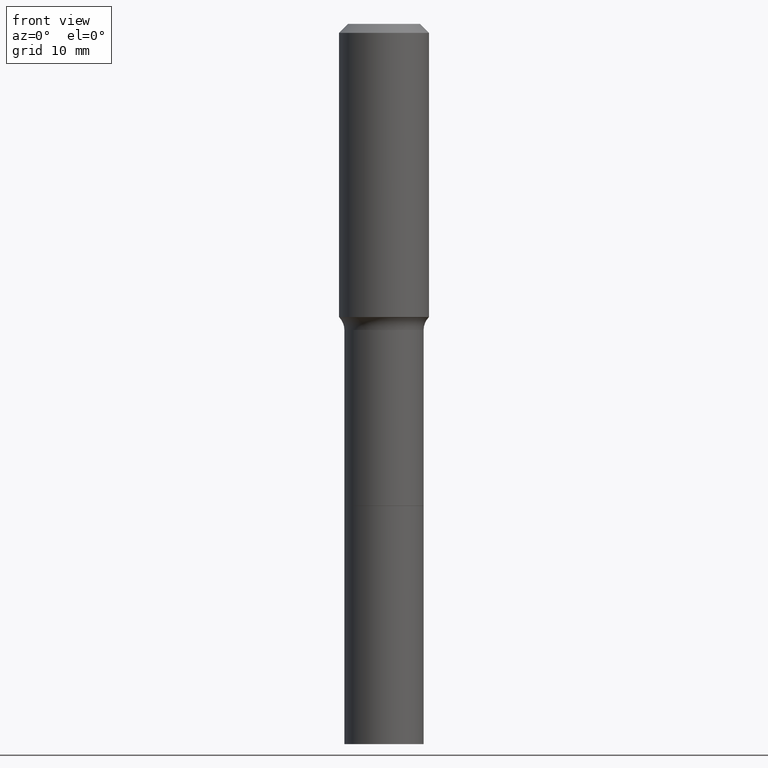
[diagram: clean part render]
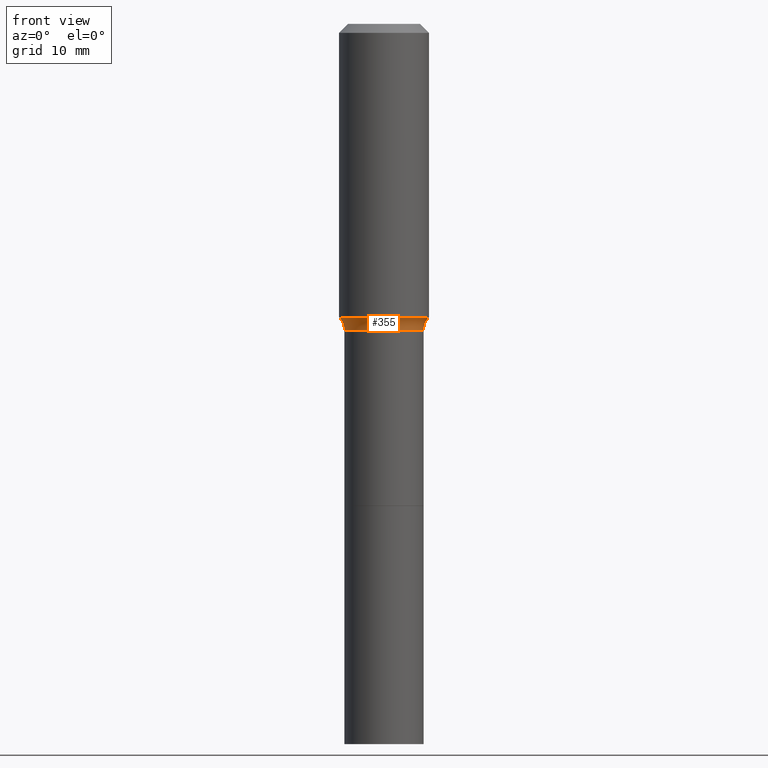
[diagram: same view with one face highlighted and labeled with its STEP entity id]
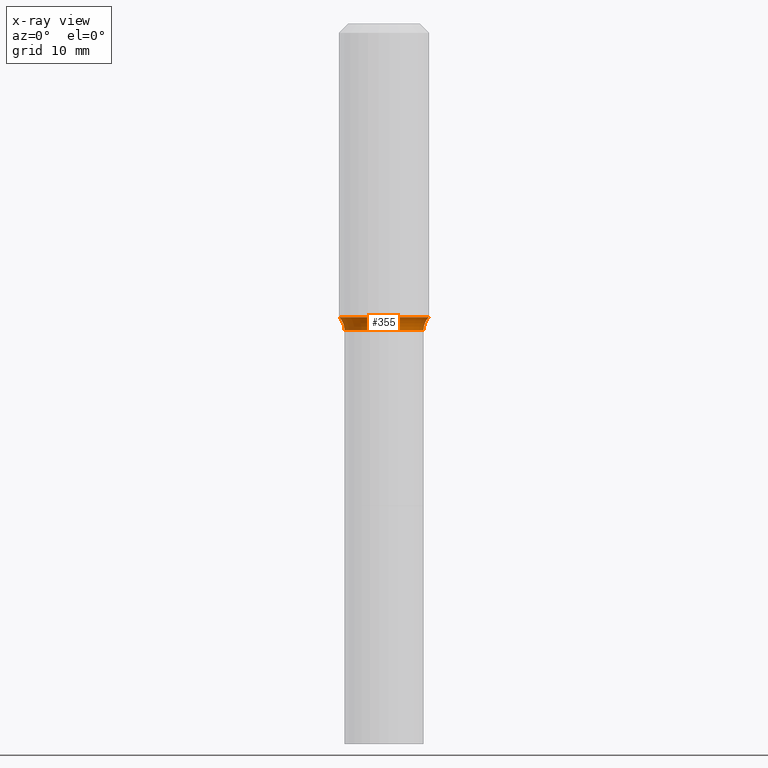
[diagram: x-ray of the same camera — body ghosted, the highlighted face saturated]
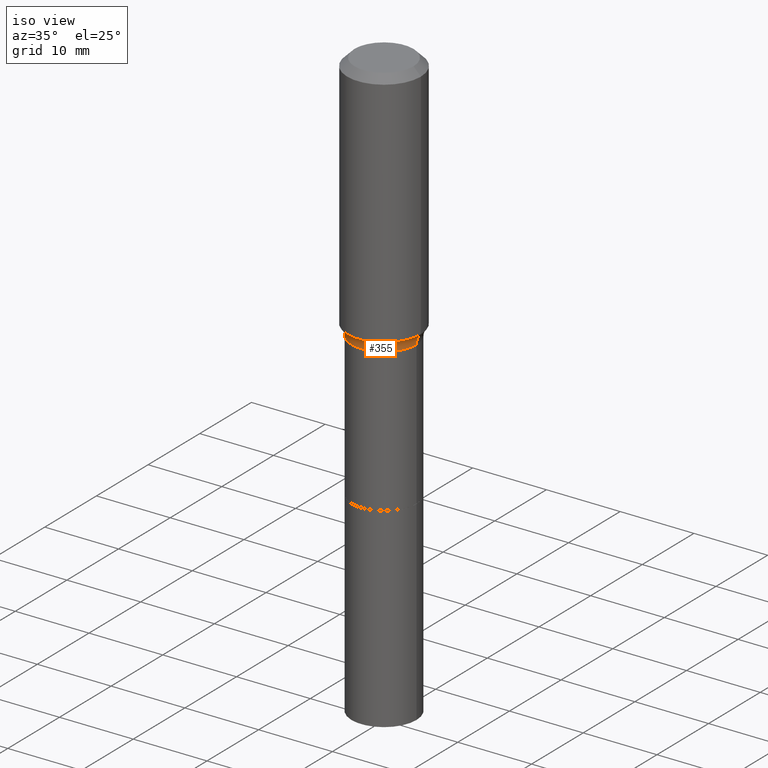
[diagram: same view with one face highlighted and labeled with its STEP entity id]
A machine part, front view. The second image highlights one B-rep face of the part: STEP entity #355.
The next image is the same camera in x-ray: the body ghosted, the highlighted face saturated — about 0% of this face is hidden behind the body in this view.
A second angle (iso view) of the same face is appended — the face is thin or edge-on in the first view.
In plain terms, the highlighted toroidal blend (fillet) surface has major radius 6.4325 mm and minor (blend) radius 2.032 mm.
Its self-contained STEP definition (entity closure, byte-faithful):
#8 = AXIS2_PLACEMENT_3D ( 'NONE', #374, #435, #468 ) ;
#13 = VERTEX_POINT ( 'NONE', #356 ) ;
#16 = EDGE_CURVE ( 'NONE', #68, #13, #248, .T. ) ;
#32 = ORIENTED_EDGE ( 'NONE', *, *, #40, .F. ) ;
#40 = EDGE_CURVE ( 'NONE', #220, #228, #175, .T. ) ;
#68 = VERTEX_POINT ( 'NONE', #81 ) ;
#73 = CARTESIAN_POINT ( 'NONE',  ( 0.1947417038704662429, -5.843076206309545560E-15, -1.284040131195000489 ) ) ;
#76 = DIRECTION ( 'NONE',  ( 1.000000000000000000, -6.982962677686266711E-15, 4.883557194083112340E-29 ) ) ;
#81 = CARTESIAN_POINT ( 'NONE',  ( -0.1947417038704662429, -3.099479126046004502E-15, -1.284040131195000489 ) ) ;
#107 = ORIENTED_EDGE ( 'NONE', *, *, #241, .T. ) ;
#113 = TOROIDAL_SURFACE ( 'NONE', #398, 0.2532499999999998641, 0.07999999999999994615 ) ;
#122 = CARTESIAN_POINT ( 'NONE',  ( 0.2532499999999998641, -6.442132218299481750E-15, -1.338600000000000234 ) ) ;
#139 = CARTESIAN_POINT ( 'NONE',  ( 3.273504543959424474E-29, -4.673696920175435525E-15, -1.338600000000000234 ) ) ;
#175 = CIRCLE ( 'NONE', #396, 0.07999999999999993228 ) ;
#182 = FACE_OUTER_BOUND ( 'NONE', #431, .T. ) ;
#192 = DIRECTION ( 'NONE',  ( 1.000000000000000000, -6.982962677686269866E-15, 0.000000000000000000 ) ) ;
#197 = EDGE_CURVE ( 'NONE', #68, #220, #507, .T. ) ;
#204 = DIRECTION ( 'NONE',  ( 1.000000000000000000, -6.982962677686265133E-15, 0.000000000000000000 ) ) ;
#220 = VERTEX_POINT ( 'NONE', #73 ) ;
#227 = DIRECTION ( 'NONE',  ( -2.445468806185136597E-29, 3.491481338843145583E-15, 1.000000000000000000 ) ) ;
#228 = VERTEX_POINT ( 'NONE', #504 ) ;
#241 = EDGE_CURVE ( 'NONE', #13, #228, #299, .T. ) ;
#248 = CIRCLE ( 'NONE', #315, 0.07999999999999993228 ) ;
#273 = DIRECTION ( 'NONE',  ( -6.982962677686266711E-15, -1.000000000000000000, 3.491481338843145583E-15 ) ) ;
#299 = CIRCLE ( 'NONE', #434, 0.1732499999999998763 ) ;
#312 = DIRECTION ( 'NONE',  ( -1.000000000000000000, 7.105427357601005014E-15, 0.000000000000000000 ) ) ;
#315 = AXIS2_PLACEMENT_3D ( 'NONE', #320, #483, #312 ) ;
#320 = CARTESIAN_POINT ( 'NONE',  ( -0.2532499999999998641, -2.874247441862983165E-15, -1.338600000000000234 ) ) ;
#355 = ADVANCED_FACE ( 'NONE', ( #182 ), #113, .F. ) ;
#356 = CARTESIAN_POINT ( 'NONE',  ( -0.1732499999999998763, -4.782537594252119872E-15, -1.338600000000000234 ) ) ;
#374 = CARTESIAN_POINT ( 'NONE',  ( 3.140080086727243582E-29, -4.483202156393049043E-15, -1.284040131195000489 ) ) ;
#394 = ORIENTED_EDGE ( 'NONE', *, *, #197, .F. ) ;
#396 = AXIS2_PLACEMENT_3D ( 'NONE', #122, #273, #204 ) ;
#398 = AXIS2_PLACEMENT_3D ( 'NONE', #425, #227, #76 ) ;
#425 = CARTESIAN_POINT ( 'NONE',  ( 3.273504543959424474E-29, -4.673696920175435525E-15, -1.338600000000000234 ) ) ;
#431 = EDGE_LOOP ( 'NONE', ( #394, #512, #107, #32 ) ) ;
#434 = AXIS2_PLACEMENT_3D ( 'NONE', #139, #511, #192 ) ;
#435 = DIRECTION ( 'NONE',  ( -2.445468806185136597E-29, 3.491481338843145583E-15, 1.000000000000000000 ) ) ;
#468 = DIRECTION ( 'NONE',  ( 1.000000000000000000, -6.982962677686267499E-15, 0.000000000000000000 ) ) ;
#483 = DIRECTION ( 'NONE',  ( 7.105427357601001859E-15, 1.000000000000000000, -3.491481338843145583E-15 ) ) ;
#504 = CARTESIAN_POINT ( 'NONE',  ( 0.1732499999999998763, -5.883495204084580886E-15, -1.338600000000000234 ) ) ;
#507 = CIRCLE ( 'NONE', #8, 0.1947417038704662429 ) ;
#511 = DIRECTION ( 'NONE',  ( -2.445468806185136597E-29, 3.491481338843145583E-15, 1.000000000000000000 ) ) ;
#512 = ORIENTED_EDGE ( 'NONE', *, *, #16, .T. ) ;